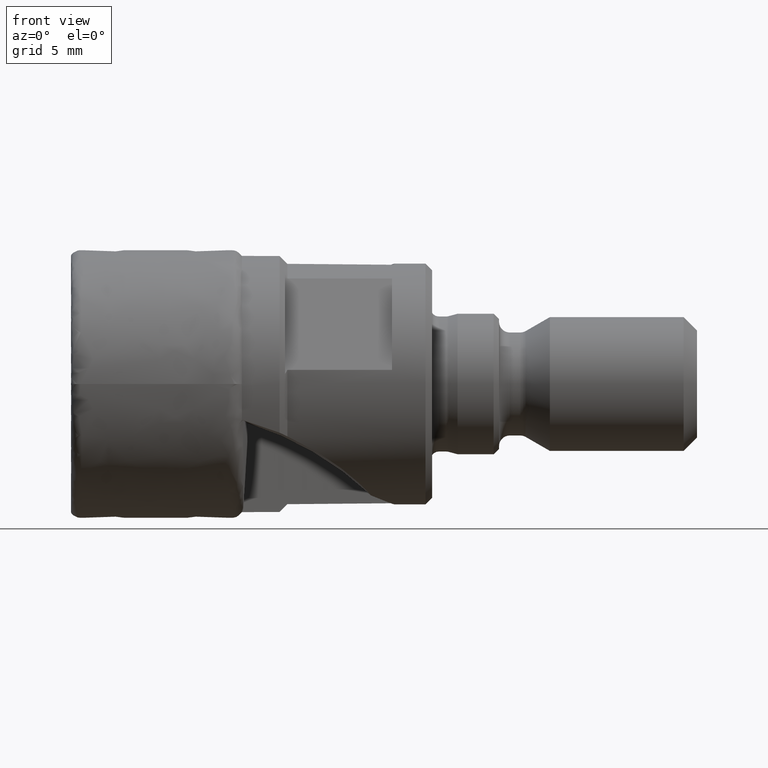
[diagram: clean part render]
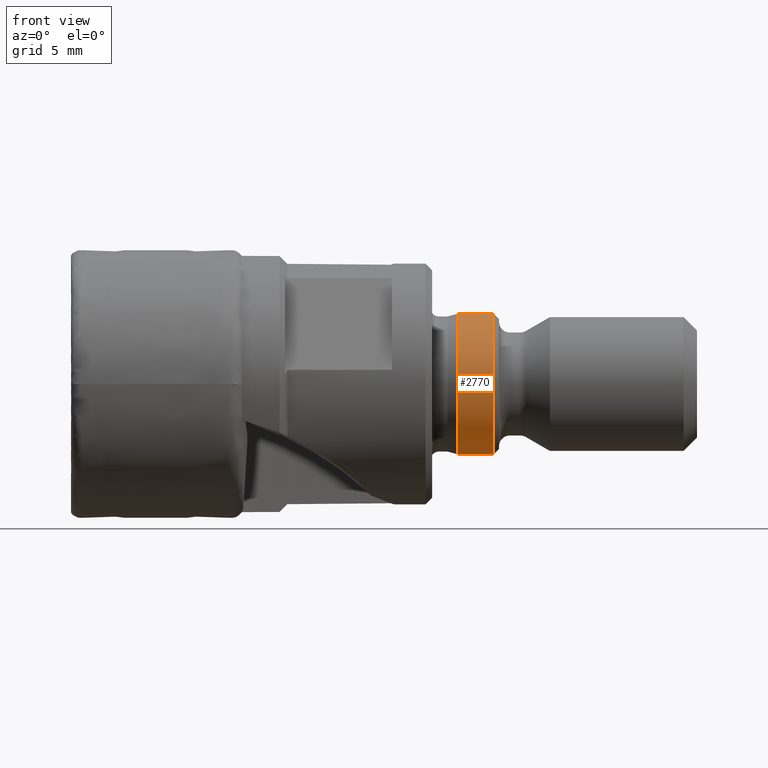
[diagram: same view with one face highlighted and labeled with its STEP entity id]
A machine part, front view. The second image highlights one B-rep face of the part: STEP entity #2770.
In plain terms, the highlighted cylindrical surface (partial cylindrical patch) has radius 5.25 mm, axis along (1, -0, -0).
Its self-contained STEP definition (entity closure, byte-faithful):
#41 = CIRCLE ( 'NONE', #3477, 5.250000000000000000 ) ;
#42 = CIRCLE ( 'NONE', #3452, 5.250000000000000000 ) ;
#269 = CARTESIAN_POINT ( 'NONE',  ( 30.50000000000017100, 0.0000000000000000000, 0.0000000000000000000 ) ) ;
#270 = DIRECTION ( 'NONE',  ( -1.000000000000000000, -0.0000000000000000000, -0.0000000000000000000 ) ) ;
#271 = DIRECTION ( 'NONE',  ( 0.0000000000000000000, 0.0000000000000000000, 1.000000000000000000 ) ) ;
#273 = CARTESIAN_POINT ( 'NONE',  ( 27.79979491924311900, 0.0000000000000000000, 0.0000000000000000000 ) ) ;
#274 = DIRECTION ( 'NONE',  ( 1.000000000000000000, 0.0000000000000000000, 0.0000000000000000000 ) ) ;
#275 = DIRECTION ( 'NONE',  ( 0.0000000000000000000, 0.0000000000000000000, -1.000000000000000000 ) ) ;
#857 = CARTESIAN_POINT ( 'NONE',  ( 27.79979491924311900, 0.0000000000000000000, -5.250000000000000000 ) ) ;
#1283 = LINE ( 'NONE', #2420, #1285 ) ;
#1285 = VECTOR ( 'NONE', #2427, 1000.000000000000000 ) ;
#1289 = LINE ( 'NONE', #2466, #1291 ) ;
#1291 = VECTOR ( 'NONE', #2467, 1000.000000000000000 ) ;
#1312 = VERTEX_POINT ( 'NONE', #3567 ) ;
#1330 = VERTEX_POINT ( 'NONE', #3907 ) ;
#1399 = VERTEX_POINT ( 'NONE', #857 ) ;
#1423 = VERTEX_POINT ( 'NONE', #3158 ) ;
#1660 = ORIENTED_EDGE ( 'NONE', *, *, #3617, .F. ) ;
#1661 = ORIENTED_EDGE ( 'NONE', *, *, #3674, .T. ) ;
#1662 = ORIENTED_EDGE ( 'NONE', *, *, #3608, .T. ) ;
#1663 = ORIENTED_EDGE ( 'NONE', *, *, #3673, .T. ) ;
#2420 = CARTESIAN_POINT ( 'NONE',  ( 27.09999999999999800, 0.0000000000000000000, -5.250000000000000000 ) ) ;
#2427 = DIRECTION ( 'NONE',  ( 1.000000000000000000, -0.0000000000000000000, -0.0000000000000000000 ) ) ;
#2466 = CARTESIAN_POINT ( 'NONE',  ( 27.09999999999999800, 6.429395695523604200E-016, 5.250000000000000000 ) ) ;
#2467 = DIRECTION ( 'NONE',  ( 1.000000000000000000, -0.0000000000000000000, -0.0000000000000000000 ) ) ;
#2770 = ADVANCED_FACE ( 'NONE', ( #3887 ), #3870, .T. ) ;
#3158 = CARTESIAN_POINT ( 'NONE',  ( 30.50000000000017100, 6.429395695523604200E-016, -5.250000000000000000 ) ) ;
#3285 = AXIS2_PLACEMENT_3D ( 'NONE', #3783, #3806, #3787 ) ;
#3452 = AXIS2_PLACEMENT_3D ( 'NONE', #273, #274, #275 ) ;
#3477 = AXIS2_PLACEMENT_3D ( 'NONE', #269, #270, #271 ) ;
#3567 = CARTESIAN_POINT ( 'NONE',  ( 27.79979491924311900, 6.429395695523604200E-016, 5.250000000000000000 ) ) ;
#3608 = EDGE_CURVE ( 'NONE', #1399, #1423, #1283, .T. ) ;
#3617 = EDGE_CURVE ( 'NONE', #1312, #1330, #1289, .T. ) ;
#3673 = EDGE_CURVE ( 'NONE', #1423, #1330, #41, .T. ) ;
#3674 = EDGE_CURVE ( 'NONE', #1312, #1399, #42, .T. ) ;
#3783 = CARTESIAN_POINT ( 'NONE',  ( 27.09999999999999800, 0.0000000000000000000, 0.0000000000000000000 ) ) ;
#3787 = DIRECTION ( 'NONE',  ( 0.0000000000000000000, 0.0000000000000000000, -1.000000000000000000 ) ) ;
#3806 = DIRECTION ( 'NONE',  ( 1.000000000000000000, -0.0000000000000000000, -0.0000000000000000000 ) ) ;
#3870 = CYLINDRICAL_SURFACE ( 'NONE', #3285, 5.250000000000000000 ) ;
#3887 = FACE_OUTER_BOUND ( 'NONE', #4096, .T. ) ;
#3907 = CARTESIAN_POINT ( 'NONE',  ( 30.50000000000017100, 0.0000000000000000000, 5.250000000000000000 ) ) ;
#4096 = EDGE_LOOP ( 'NONE', ( #1660, #1661, #1662, #1663 ) ) ;